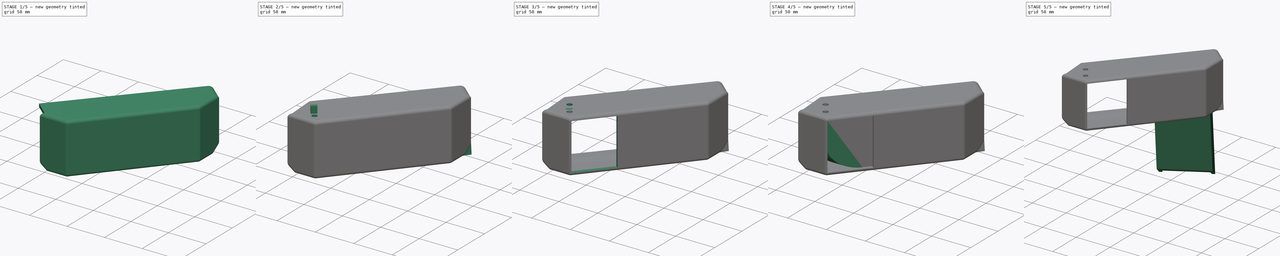
[diagram: build sequence overview — one tinted view per stage of 5, left to right]
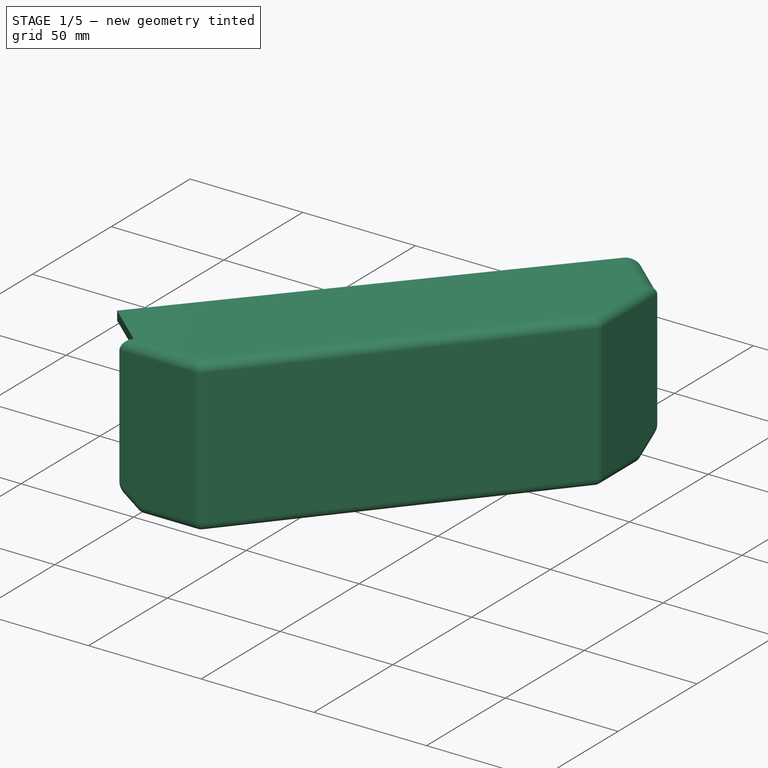
[diagram: stage 1 of 5 — iso view after this stage's code; geometry added in this stage tinted green]
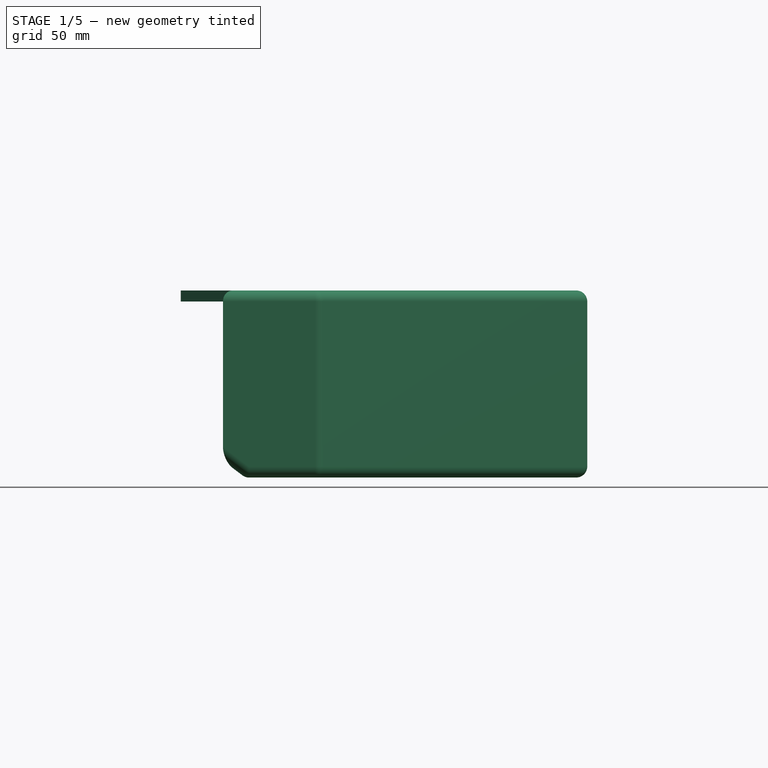
[diagram: stage 1 of 5 — front view after this stage's code; geometry added in this stage tinted green]
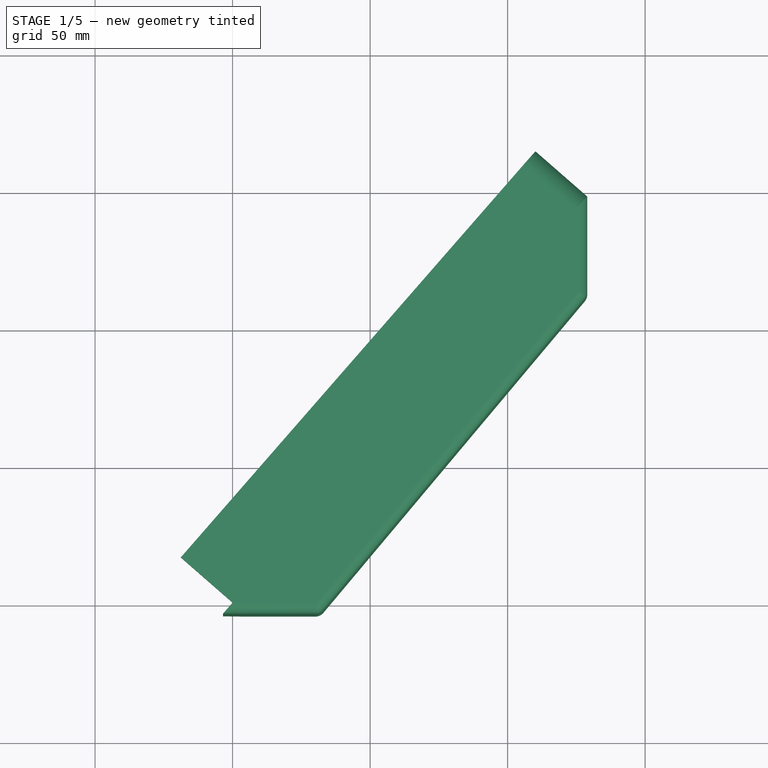
[diagram: stage 1 of 5 — top view after this stage's code; geometry added in this stage tinted green]
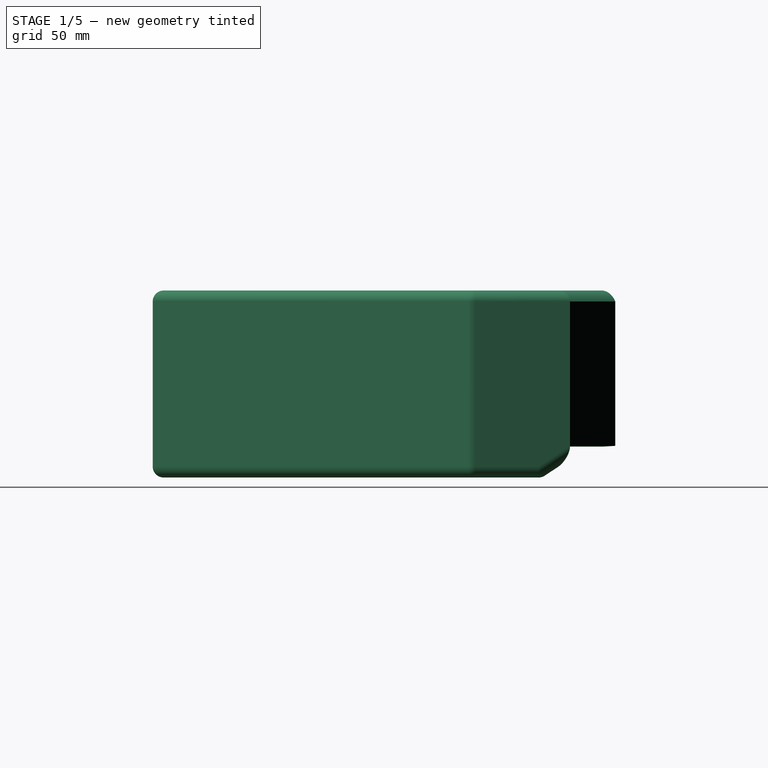
[diagram: stage 1 of 5 — right view after this stage's code; geometry added in this stage tinted green]
FCSTD DOCUMENT  (FreeCAD 0.21R33771 (Git))
Label: slide V.2
License: All rights reserved
LicenseURL: https://en.wikipedia.org/wiki/All_rights_reserved
objects: Sketcher::SketchObject×18, PartDesign::Pad×11, PartDesign::Pocket×7, PartDesign::Chamfer×5, PartDesign::Fillet×4, PartDesign::ShapeBinder×3, PartDesign::Body×2, PartDesign::Thickness×1, Part::MultiFuse×1
note: 80 computed .brp shape members not serialized (recipe doc carries the construction recipe); baked Part::Feature solids carry a one-line shape summary decoded from their .brp

FEATURE [Sketcher::SketchObject] Sketch
  FullyConstrained = true
  sketch-geometry (4):
    g0: LineSegment StartX=0 StartY=0 StartZ=0 EndX=124.939 EndY=143.144 EndZ=0
    g1: LineSegment StartX=124.939 StartY=143.144 StartZ=0 EndX=124.939 EndY=113.144 EndZ=0
    g2: LineSegment StartX=6.062e-13 StartY=0 StartZ=0 EndX=30 EndY=0 EndZ=0
    g3: LineSegment StartX=30 StartY=0 StartZ=0 EndX=124.939 EndY=113.144 EndZ=0
  constraints (12):
    c: Coincident(g0,g-1)
    c: Distance(g0) = 190
    c: Coincident(g1,g0)
    c: Vertical(g1)
    c: PointOnObject(g2,g0)
    c: PointOnObject(g2,g-1)
    c: Horizontal(g2)
    c: Distance(g1) = 30
    c: Distance(g2) = 30
    c: Coincident(g3,g2)
    c: Coincident(g3,g1)
    c: Angle(g3,g2) = 2.26893
FEATURE [PartDesign::Pad] Pad
  Direction = (0,0,1)
  Length = 60
  Length2 = 10
  Profile = -> Sketch
  ReferenceAxis = -> Sketch [N_Axis]
  Type = 0
FEATURE [PartDesign::Chamfer] Chamfer
  Angle = 45
  Base = -> Pad [Edge3]
  BaseFeature = -> Pad
  ChamferType = 0
  FlipDirection = false
  Size = 4.5
  Size2 = 1
  SupportTransform = false
  UseAllEdges = false
FEATURE [PartDesign::ShapeBinder] CopyPad002
  TraceSupport = false
FEATURE [PartDesign::ShapeBinder] CopyPad003
  TraceSupport = false
FEATURE [PartDesign::Thickness] Thickness
  Base = -> Chamfer [Face1]
  BaseFeature = -> Chamfer
  Intersection = false
  Join = 0
  Mode = 0
  SupportTransform = false
  Value = 4
FEATURE [PartDesign::Pad] Pad007
  BaseFeature = -> Thickness
  Direction = (-0.75339,0.657574,0)
  Length = 25
  Length2 = 10
  Profile = -> Sketch010
  ReferenceAxis = -> Sketch010 [N_Axis]
  Type = 0
FEATURE [PartDesign::Fillet] Fillet001
  Base = -> Pad007
  BaseFeature = -> Pad007
  Radius = 4
  SupportTransform = false
  UseAllEdges = false
FEATURE [Sketcher::SketchObject] Sketch012
  ExternalGeometry = -> [Fillet001]
  FullyConstrained = true
  MapMode = 5
  Placement = pos=(0,0,0) rot=(0,0.707107,0.707107;3.14159rad)
  Support = -> [Fillet001]
  sketch-geometry (4):
    g0: LineSegment StartX=-3.029e-13 StartY=60 StartZ=0 EndX=0 EndY=4.5 EndZ=0
    g1: LineSegment StartX=0 StartY=4.5 StartZ=0 EndX=-5.96 EndY=0.02 EndZ=0
    g2: LineSegment StartX=-5.96 StartY=0.02 StartZ=0 EndX=-5.96 EndY=60 EndZ=0
    g3: LineSegment StartX=-5.96 StartY=60 StartZ=0 EndX=-3.029e-13 EndY=60 EndZ=0
  constraints (16):
    c: Coincident(g0,g-4)
    c: Coincident(g0,g-6)
    c: PointOnObject(g1,g-2)
    c: Coincident(g2,g1)
    c: PointOnObject(g2,g-8)
    c: Vertical(g2)
    c: PointOnObject(g3,g2)
    c: Coincident(g3,g0)
    c: Horizontal(g3)
    c: Distance(g2) = 59.98
    c: Distance(g3) = 5.96
    c: Distance(g-6) = 7.47842
    c: Block(g0)
    c: Block(g2)
    c: Block(g3)
    c: Coincident(g0,g1)
FEATURE [PartDesign::Pad] Pad008
  BaseFeature = -> Fillet001
  Direction = (0,1,-2e-16)
  Length = 24
  Length2 = 10
  Profile = -> Sketch012
  ReferenceAxis = -> Sketch012 [N_Axis]
  Type = 0
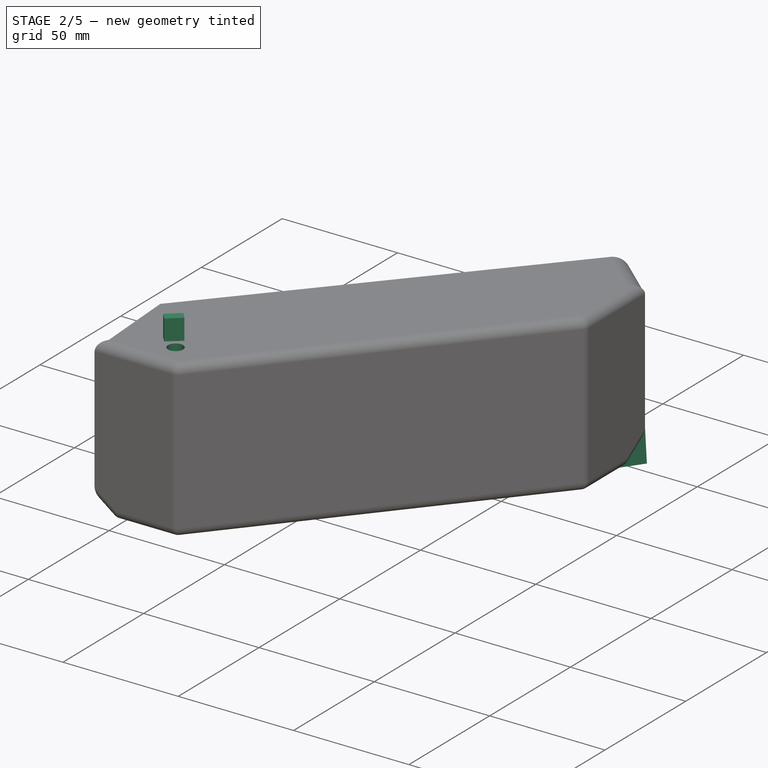
[diagram: stage 2 of 5 — iso view after this stage's code; geometry added in this stage tinted green]
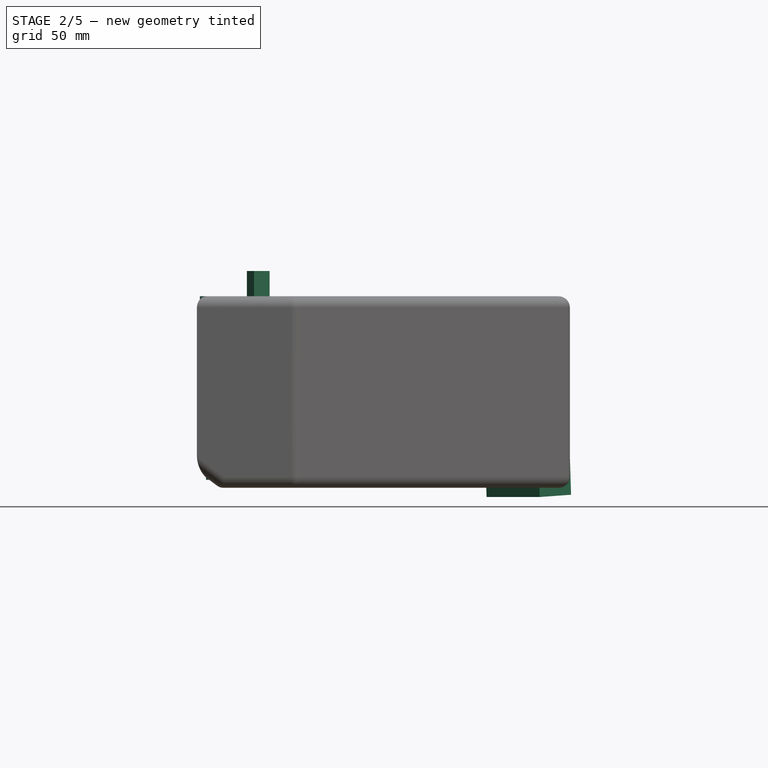
[diagram: stage 2 of 5 — front view after this stage's code; geometry added in this stage tinted green]
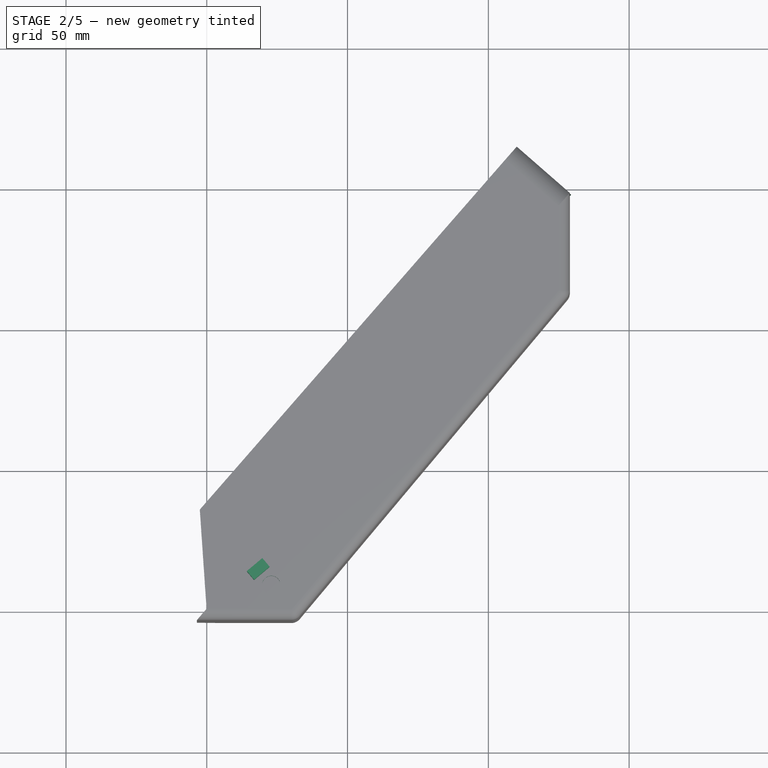
[diagram: stage 2 of 5 — top view after this stage's code; geometry added in this stage tinted green]
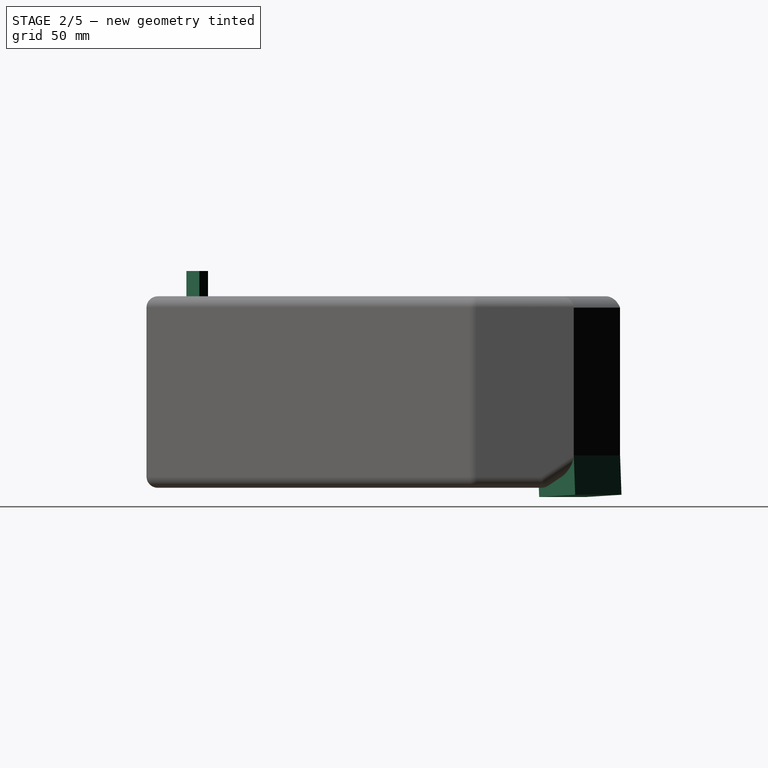
[diagram: stage 2 of 5 — right view after this stage's code; geometry added in this stage tinted green]
FEATURE [PartDesign::Body] Body001
  Group = -> [Sketch001,Pad001,Fillet,Sketch002,Pocket,Sketch003,Pocket001,CopyPad,Sketch004,Pad002,Sketch006,Pad004,Sketch007,Pad005,Sketch008,Pad006,Sketch011,Pocket002,Chamfer002]
  Origin = -> Origin001
  Placement = pos=(65.1292,101.384,39.7679) rot=(-0.5,0.866025,0;1.5708rad)
  Tip = -> Chamfer002
FEATURE [Sketcher::SketchObject] Sketch014
  ExternalGeometry = -> [Pad008]
  FullyConstrained = true
  MapMode = 5
  Placement = pos=(0,0,60) rot=(1,0,0;3.14159rad)
  Support = -> [Pad008]
  sketch-geometry (2):
    g0: LineSegment StartX=30 StartY=0 StartZ=0 EndX=22.9293 EndY=-8.42649 EndZ=0
    g1: Circle CenterX=22.9293 CenterY=-8.42649 CenterZ=0 NormalX=0 NormalY=0 NormalZ=1 AngleXU=0 Radius=3.25
  constraints (5):
    c: Coincident(g0,g-3)
    c: Angle(g-1,g0) = 0.872665
    c: Distance(g0) = 11
    c: Coincident(g1,g0)
    c: Diameter(g1) = 6.5
FEATURE [PartDesign::Pocket] Pocket003
  BaseFeature = -> Pad008
  Direction = (0,0,1)
  Length = 5
  Length2 = 5
  Profile = -> Sketch014
  ReferenceAxis = -> Sketch014 [N_Axis]
  Type = 0
FEATURE [Sketcher::SketchObject] Sketch015
  FullyConstrained = false
  MapMode = 5
  Placement = pos=(0,0,64) rot=(0,0,1;0rad)
  Support = -> [Pocket003]
  sketch-geometry (4):
    g0: LineSegment StartX=14.2258 StartY=13.1984 StartZ=0 EndX=19.7413 EndY=17.8264 EndZ=0
    g1: LineSegment StartX=19.7413 StartY=17.8264 StartZ=0 EndX=22.3125 EndY=14.7623 EndZ=0
    g2: LineSegment StartX=22.3125 StartY=14.7623 StartZ=0 EndX=16.7969 EndY=10.1342 EndZ=0
    g3: LineSegment StartX=16.7969 StartY=10.1342 StartZ=0 EndX=14.2258 EndY=13.1984 EndZ=0
  constraints (4):
    c: Coincident(g0,g1)
    c: Coincident(g1,g2)
    c: Coincident(g2,g3)
    c: Coincident(g3,g0)
FEATURE [PartDesign::Pad] Pad009
  BaseFeature = -> Pocket003
  Direction = (0,0,1)
  Length = 9
  Length2 = 10
  Profile = -> Sketch015
  ReferenceAxis = -> Sketch015 [N_Axis]
  Type = 0
FEATURE [PartDesign::Chamfer] Chamfer003
  Angle = 45
  Base = -> Pad009 [Edge52]
  BaseFeature = -> Pad009
  ChamferType = 0
  FlipDirection = false
  Size = 24.9
  Size2 = 1
  SupportTransform = false
  UseAllEdges = false
FEATURE [Sketcher::SketchObject] Sketch016
  ExternalGeometry = -> [Chamfer003]
  FullyConstrained = true
  MapMode = 5
  Placement = pos=(0,0,0) rot=(-0.305975,0.673194,0.673194;3.73545rad)
  Support = -> [Chamfer003]
  sketch-geometry (4):
    g0: LineSegment StartX=-9.06361 StartY=4.5 StartZ=0 EndX=-9.06361 EndY=-1.16 EndZ=0
    g1: LineSegment StartX=-9.06361 StartY=4.5 StartZ=0 EndX=-117.524 EndY=4.5 EndZ=0
    g2: LineSegment StartX=-9.06361 StartY=-1.16 StartZ=0 EndX=-117.524 EndY=-1.16 EndZ=0
    g3: LineSegment StartX=-117.524 StartY=-1.16 StartZ=0 EndX=-117.524 EndY=4.5 EndZ=0
  constraints (15):
    c: Coincident(g0,g-5)
    c: PointOnObject(g0,g-4)
    c: Parallel(g-5,g0)
    c: Coincident(g1,g0)
    c: PointOnObject(g1,g-3)
    c: Horizontal(g1)
    c: Coincident(g2,g0)
    c: Equal(g1,g2)
    c: Parallel(g1,g2)
    c: Distance(g1) = 108.46
    c: Distance(g2) = 108.46
    c: Coincident(g3,g2)
    c: Coincident(g3,g1)
    c: Vertical(g3)
    c: Perpendicular(g0,g2)
FEATURE [PartDesign::Pad] Pad010
  BaseFeature = -> Chamfer003
  Direction = (-0.75339,0.657574,0)
  Length = 10
  Length2 = 10
  Profile = -> Sketch016
  ReferenceAxis = -> Sketch016 [N_Axis]
  Type = 0
FEATURE [PartDesign::Chamfer] Chamfer004
  Angle = 45
  Base = -> Pad010 [Edge69]
  BaseFeature = -> Pad010
  ChamferType = 0
  FlipDirection = false
  Size = 2
  Size2 = 1
  SupportTransform = false
  UseAllEdges = false
FEATURE [Sketcher::SketchObject] Sketch017
  ExternalGeometry = -> [Chamfer004]
  FullyConstrained = true
  MapMode = 5
  Placement = pos=(0.0606454,0.0694821,-1.91674) rot=(0.999875,-0.000286,0.015804;3.17782rad)
  Support = -> [Chamfer004]
  sketch-geometry (4):
    g0: LineSegment StartX=128.943 StartY=-147.902 StartZ=0 EndX=110.099 EndY=-164.331 EndZ=0
    g1: LineSegment StartX=110.099 StartY=-164.331 StartZ=0 EndX=98.9273 EndY=-151.517 EndZ=0
    g2: LineSegment StartX=128.943 StartY=-147.902 StartZ=0 EndX=117.771 EndY=-135.088 EndZ=0
    g3: LineSegment StartX=117.771 StartY=-135.088 StartZ=0 EndX=98.9273 EndY=-151.517 EndZ=0
  constraints (10):
    c: Coincident(g-3,g0)
    c: Coincident(g0,g-3)
    c: Coincident(g0,g1)
    c: Perpendicular(g1,g0)
    c: Distance(g1) = 17
    c: Coincident(g2,g0)
    c: Parallel(g1,g2)
    c: Equal(g1,g2)
    c: Coincident(g3,g2)
    c: Coincident(g3,g1)
FEATURE [PartDesign::Pad] Pad011
  BaseFeature = -> Chamfer004
  Direction = (0.0316033,0.0362082,-0.998844)
  Length = 14
  Length2 = 10
  Profile = -> Sketch017
  ReferenceAxis = -> Sketch017 [N_Axis]
  Type = 0
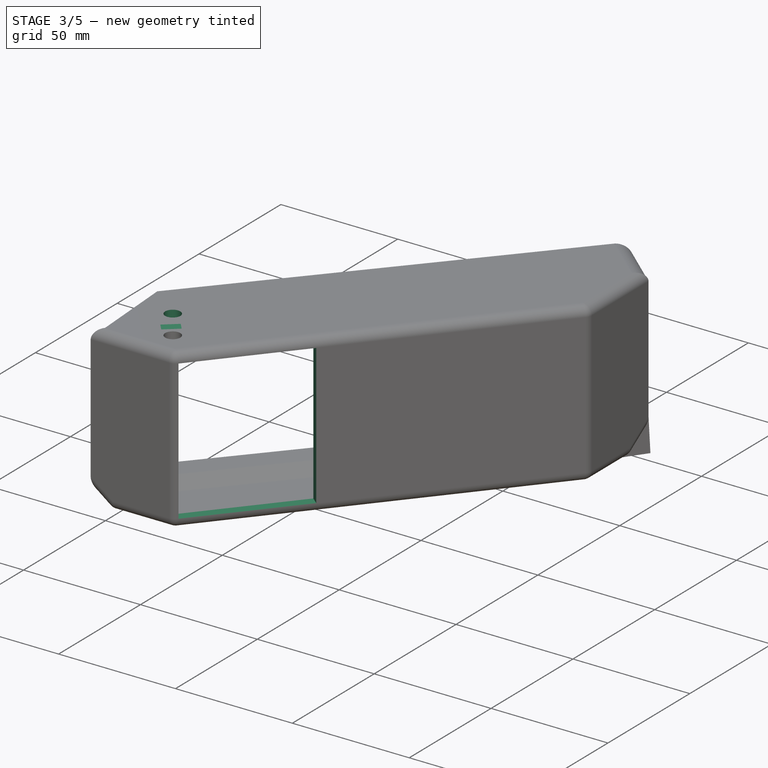
[diagram: stage 3 of 5 — iso view after this stage's code; geometry added in this stage tinted green]
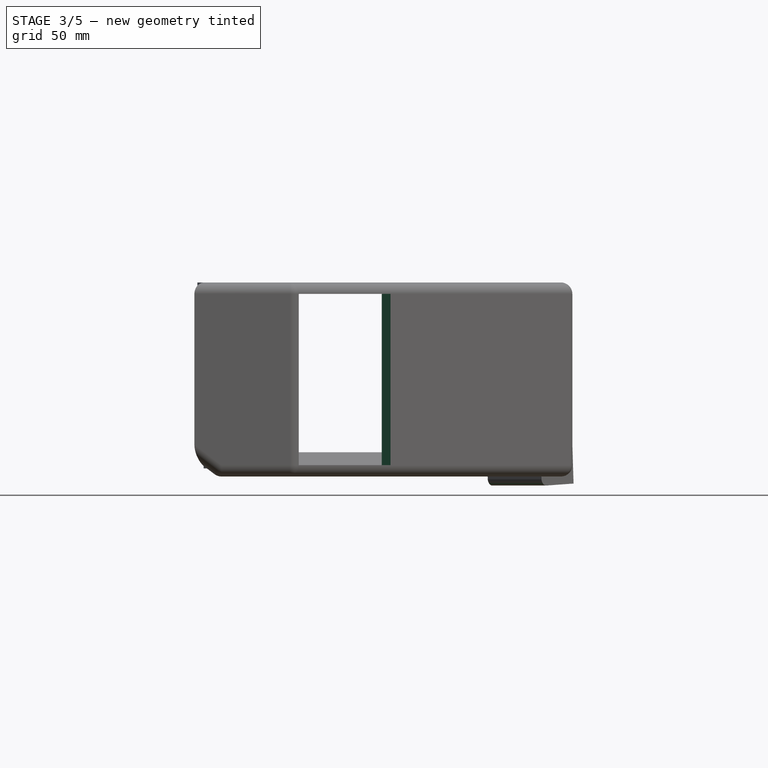
[diagram: stage 3 of 5 — front view after this stage's code; geometry added in this stage tinted green]
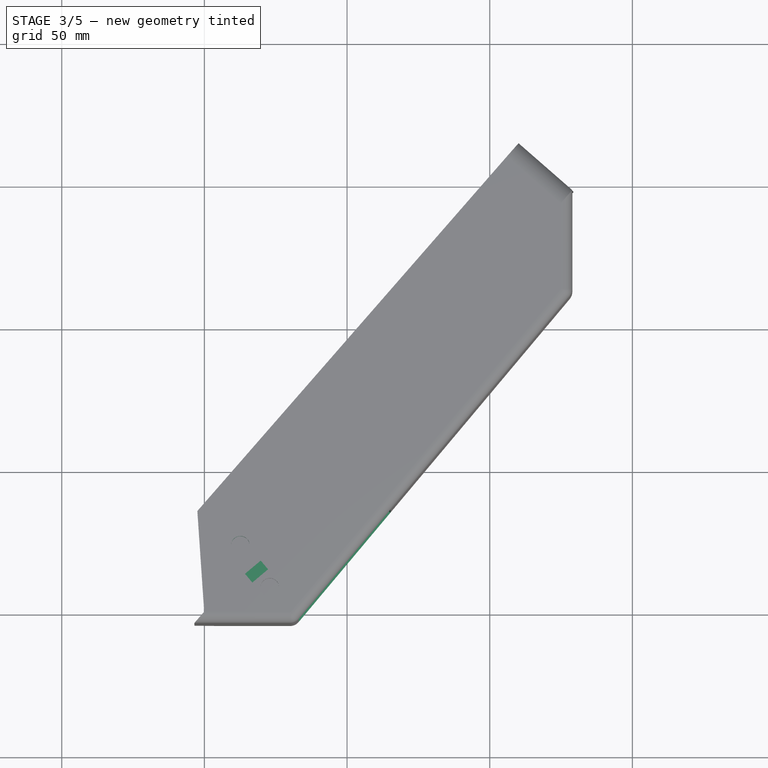
[diagram: stage 3 of 5 — top view after this stage's code; geometry added in this stage tinted green]
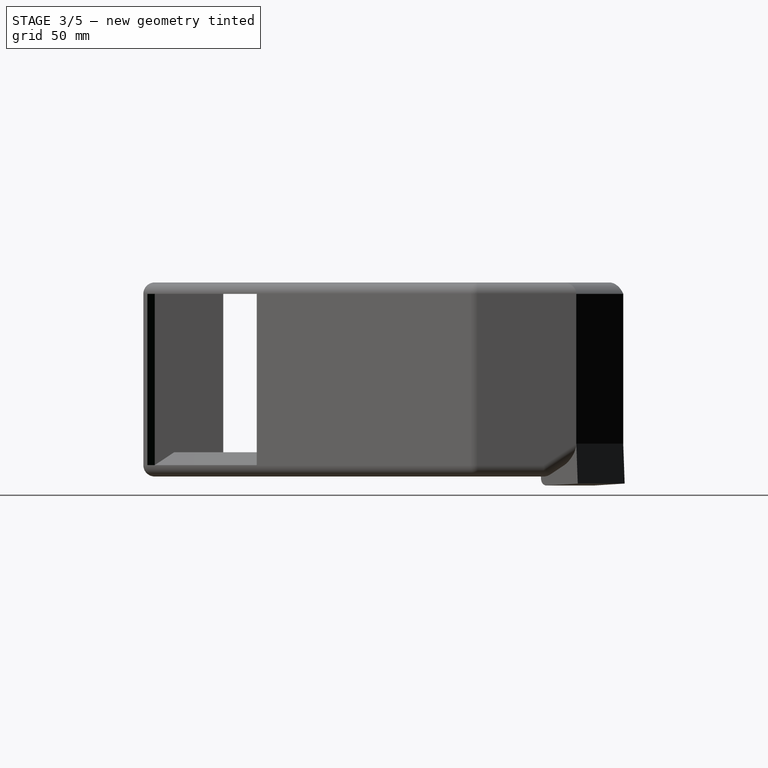
[diagram: stage 3 of 5 — right view after this stage's code; geometry added in this stage tinted green]
FEATURE [PartDesign::Fillet] Fillet002
  Base = -> Pad011 [Edge100]
  BaseFeature = -> Pad011
  Radius = 2
  SupportTransform = false
  UseAllEdges = false
FEATURE [PartDesign::Fillet] Fillet003
  Base = -> Fillet002 [Edge19]
  BaseFeature = -> Fillet002
  Radius = 2.5
  SupportTransform = false
  UseAllEdges = false
FEATURE [Sketcher::SketchObject] Sketch018
  ExternalGeometry = -> [Fillet003]
  FullyConstrained = true
  MapMode = 5
  Placement = pos=(17.6047,-14.7721,0) rot=(-0.313146,0.671543,0.671543;3.74854rad)
  Support = -> [Fillet003]
  sketch-geometry (4):
    g0: LineSegment StartX=-19.2836 StartY=60 StartZ=0 EndX=-19.2836 EndY=0 EndZ=0
    g1: LineSegment StartX=-19.2836 StartY=0 StartZ=0 EndX=-69.2836 EndY=0 EndZ=0
    g2: LineSegment StartX=-19.2836 StartY=60 StartZ=0 EndX=-69.2836 EndY=60 EndZ=0
    g3: LineSegment StartX=-69.2836 StartY=60 StartZ=0 EndX=-69.2836 EndY=0 EndZ=0
  constraints (13):
    c: Coincident(g-4,g0)
    c: Coincident(g0,g-4)
    c: Coincident(g0,g1)
    c: PointOnObject(g1,g-1)
    c: Horizontal(g1)
    c: Coincident(g2,g0)
    c: PointOnObject(g2,g-3)
    c: Horizontal(g2)
    c: Equal(g1,g2)
    c: Distance(g2) = 50
    c: Coincident(g3,g2)
    c: Coincident(g3,g1)
    c: Vertical(g3)
FEATURE [PartDesign::Pocket] Pocket004
  BaseFeature = -> Fillet003
  Direction = (0.766044,-0.642788,0)
  Length = 5
  Length2 = 5
  Profile = -> Sketch018
  ReferenceAxis = -> Sketch018 [N_Axis]
  Type = 0
FEATURE [Sketcher::SketchObject] Sketch019
  ExternalGeometry = -> [Pocket004]
  FullyConstrained = false
  MapMode = 5
  Placement = pos=(-0.621172,0.740284,0) rot=(-0.249244,0.684791,0.684791;3.63013rad)
  Support = -> [Pocket004]
  sketch-geometry (4):
    g0: LineSegment StartX=-26.5813 StartY=73 StartZ=0 EndX=-19.3813 EndY=73 EndZ=0
    g1: LineSegment StartX=-19.3813 StartY=73 StartZ=0 EndX=-19.3813 EndY=64 EndZ=0
    g2: LineSegment StartX=-19.3813 StartY=64 StartZ=0 EndX=-26.5813 EndY=64 EndZ=0
    g3: LineSegment StartX=-26.5813 StartY=64 StartZ=0 EndX=-26.5813 EndY=73 EndZ=0
  constraints (8):
    c: Coincident(g-5,g0)
    c: Coincident(g0,g-4)
    c: Coincident(g0,g1)
    c: Coincident(g1,g-6)
    c: Coincident(g1,g2)
    c: Coincident(g2,g-7)
    c: Coincident(g2,g3)
    c: Coincident(g3,g0)
FEATURE [PartDesign::Pocket] Pocket005
  BaseFeature = -> Pocket004
  Direction = (0.642788,-0.766044,2e-16)
  Length = 5
  Length2 = 5
  Profile = -> Sketch019
  ReferenceAxis = -> Sketch019 [N_Axis]
  Type = 0
FEATURE [Sketcher::SketchObject] Sketch020
  ExternalGeometry = -> [Pocket005]
  FullyConstrained = true
  MapMode = 5
  Placement = pos=(0,0,64) rot=(0,0,1;0rad)
  Support = -> [Pocket005]
  sketch-geometry (2):
    g0: LineSegment StartX=22.9293 StartY=8.42649 StartZ=0 EndX=12.605 EndY=23.1712 EndZ=0
    g1: Circle CenterX=12.605 CenterY=23.1712 CenterZ=0 NormalX=0 NormalY=0 NormalZ=1 AngleXU=0 Radius=3.25
  constraints (6):
    c: Coincident(g0,g-3)
    c: Angle(g0,g-1) = 0.959931
    c: Distance(g0) = 18
    c: Diameter(g-3) = 6.5
    c: Coincident(g1,g0)
    c: Diameter(g1) = 6.5
FEATURE [PartDesign::Pocket] Pocket006
  BaseFeature = -> Pocket005
  Direction = (0,0,-1)
  Length = 5
  Length2 = 5
  Profile = -> Sketch020
  ReferenceAxis = -> Sketch020 [N_Axis]
  Type = 0
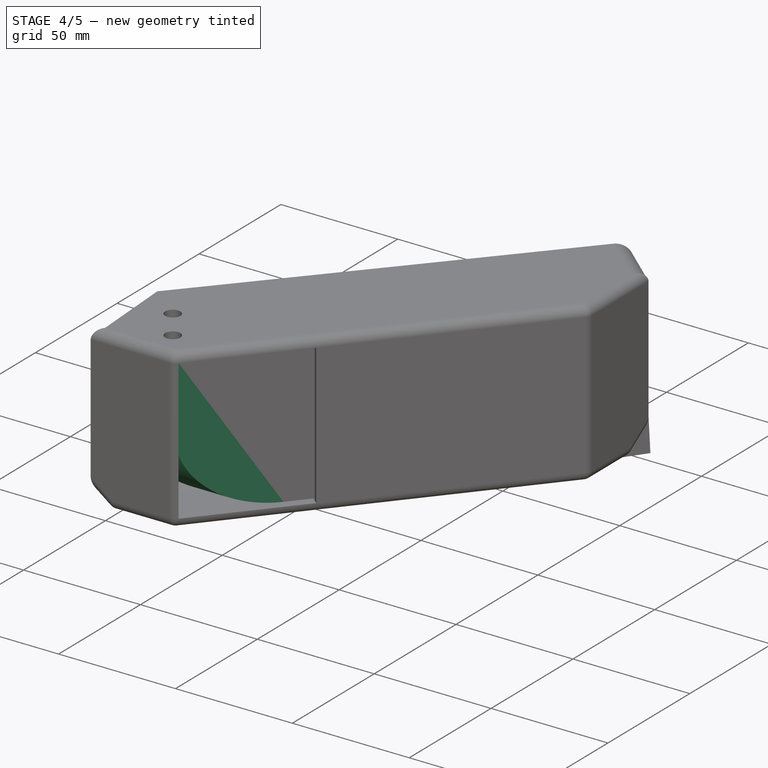
[diagram: stage 4 of 5 — iso view after this stage's code; geometry added in this stage tinted green]
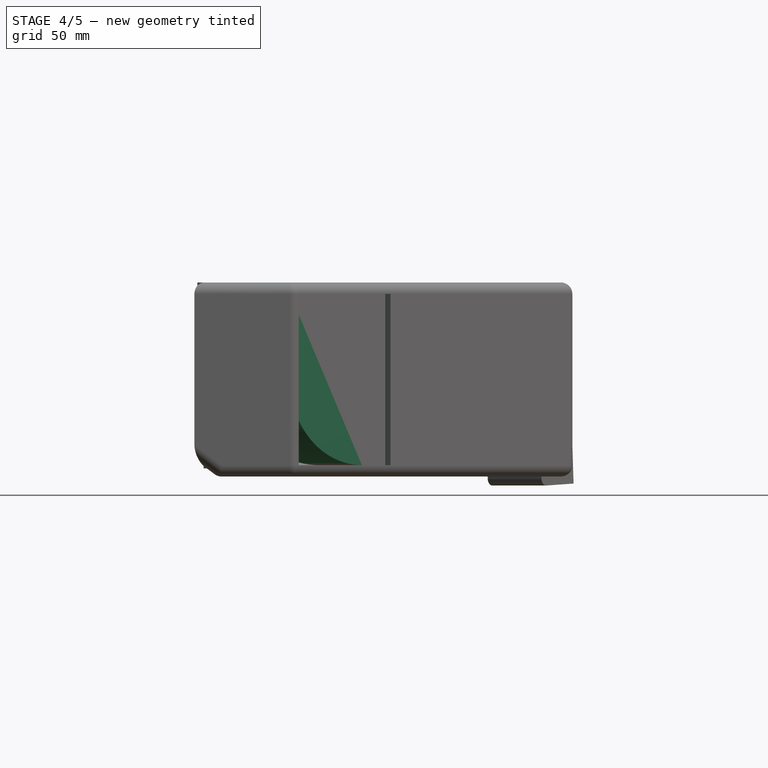
[diagram: stage 4 of 5 — front view after this stage's code; geometry added in this stage tinted green]
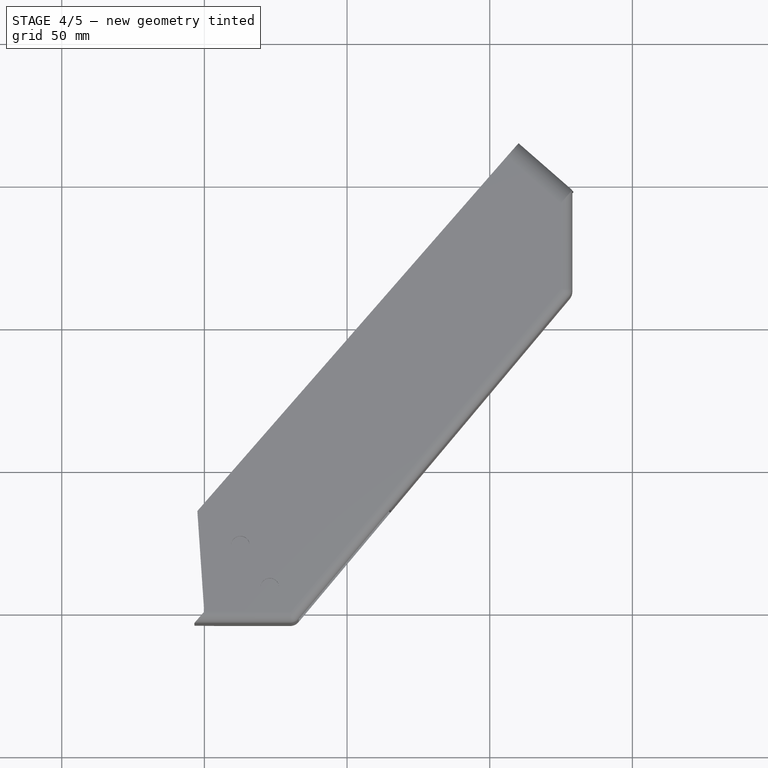
[diagram: stage 4 of 5 — top view after this stage's code; geometry added in this stage tinted green]
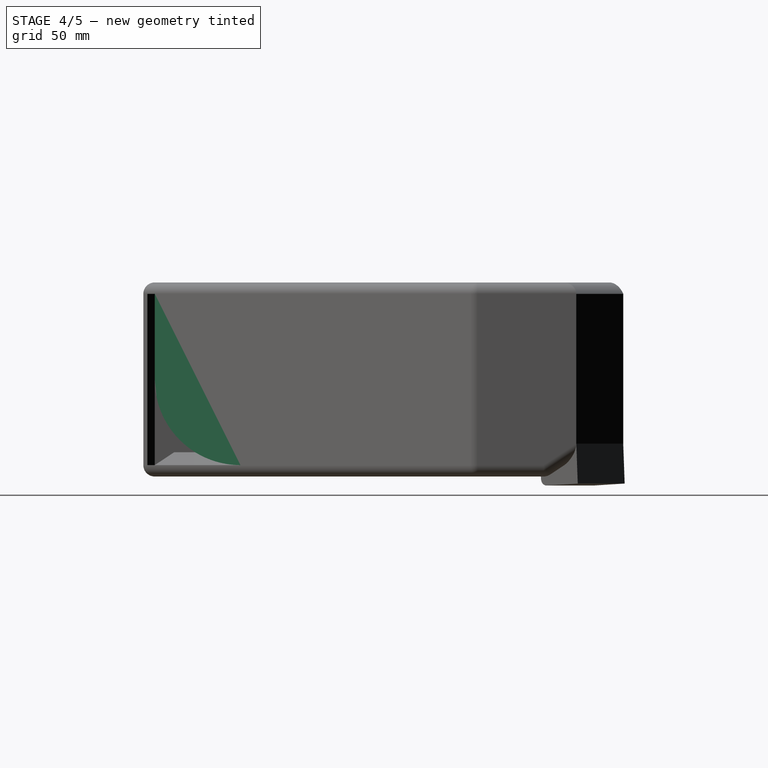
[diagram: stage 4 of 5 — right view after this stage's code; geometry added in this stage tinted green]
FEATURE [Sketcher::SketchObject] Sketch001
  FullyConstrained = true
  sketch-geometry (4):
    g0: LineSegment StartX=0 StartY=0 StartZ=0 EndX=105.651 EndY=120.158 EndZ=0
    g1: LineSegment StartX=105.651 StartY=120.158 StartZ=0 EndX=105.651 EndY=90.1575 EndZ=0
    g2: LineSegment StartX=-1.11719e-11 StartY=0 StartZ=0 EndX=30 EndY=0 EndZ=0
    g3: LineSegment StartX=30 StartY=0 StartZ=0 EndX=105.651 EndY=90.1575 EndZ=0
  constraints (12):
    c: Coincident(g0,g-1)
    c: Distance(g0) = 160
    c: Coincident(g1,g0)
    c: Vertical(g1)
    c: PointOnObject(g2,g0)
    c: PointOnObject(g2,g-1)
    c: Horizontal(g2)
    c: Distance(g1) = 30
    c: Distance(g2) = 30
    c: Coincident(g3,g2)
    c: Coincident(g3,g1)
    c: Angle(g3,g2) = 2.26893
FEATURE [PartDesign::Pad] Pad001
  Direction = (0,0,1)
  Length = 60
  Length2 = 10
  Profile = -> Sketch001
  ReferenceAxis = -> Sketch001 [N_Axis]
  Type = 0
FEATURE [PartDesign::Fillet] Fillet
  Base = -> Pad001 [Edge11]
  BaseFeature = -> Pad001
  Radius = 30
  SupportTransform = false
  UseAllEdges = false
FEATURE [Sketcher::SketchObject] Sketch002
  ExternalGeometry = -> [Fillet]
  FullyConstrained = true
  MapMode = 5
  Placement = pos=(0,0,0) rot=(-0.304632,0.673498,0.673498;3.73299rad)
  Support = -> [Fillet]
  sketch-geometry (3):
    g0: LineSegment StartX=-60.7761 StartY=60 StartZ=0 EndX=-1.77612 EndY=21.154 EndZ=0
    g1: LineSegment StartX=-60.7761 StartY=60 StartZ=0 EndX=-57.3736 EndY=-0.314102 EndZ=0
    g2: ArcOfCircle CenterX=-37.7038 CenterY=31.4721 CenterZ=0 NormalX=0 NormalY=0 NormalZ=1 AngleXU=0 Radius=37.38 StartAngle=4.15825 EndAngle=6.00352
  constraints (12):
    c: PointOnObject(g0,g-3)
    c: PointOnObject(g0,g-4)
    c: Coincident(g1,g0)
    c: PointOnObject(g0,g-3)
    c: Coincident(g2,g0)
    c: Distance(g0) = 70.64
    c: Distance(g1) = 60.41
    c: Radius(g2) = 37.38
    c: Angle(g1,g0) = 0.93218
    c: DistanceX(g0,g0) = 59
    c: PointOnObject(g1,g2)
    c: PointOnObject(g2,g1)
FEATURE [PartDesign::Pocket] Pocket
  BaseFeature = -> Fillet
  Direction = (0.750985,-0.66032,2e-16)
  Length = 10
  Length2 = 5
  Profile = -> Sketch002
  ReferenceAxis = -> Sketch002 [N_Axis]
  Type = 0
FEATURE [Sketcher::SketchObject] Sketch003
  ExternalGeometry = -> [Pocket]
  FullyConstrained = true
  MapMode = 5
  Placement = pos=(0,0,0) rot=(1,0,0;3.14159rad)
  Support = -> [Pocket]
  sketch-geometry (3):
    g0: LineSegment StartX=37.8966 StartY=-43.1 StartZ=0 EndX=45.4065 EndY=-36.4968 EndZ=0
    g1: LineSegment StartX=45.4065 StartY=-36.4968 StartZ=0 EndX=45.4065 EndY=-51.641 EndZ=0
    g2: LineSegment StartX=37.8966 StartY=-43.1 StartZ=0 EndX=45.4065 EndY=-51.641 EndZ=0
  constraints (7):
    c: Coincident(g0,g-4)
    c: Coincident(g0,g-3)
    c: Coincident(g1,g0)
    c: PointOnObject(g1,g-4)
    c: Vertical(g1)
    c: Coincident(g2,g0)
    c: Coincident(g2,g1)
FEATURE [PartDesign::Pocket] Pocket001
  BaseFeature = -> Pocket
  Direction = (0,0,1)
  Length = 60
  Length2 = 5
  Profile = -> Sketch003
  ReferenceAxis = -> Sketch003 [N_Axis]
  Type = 0
FEATURE [PartDesign::ShapeBinder] CopyPad
  TraceSupport = false
FEATURE [Sketcher::SketchObject] Sketch004
  ExternalGeometry = -> [Pocket001]
  FullyConstrained = true
  MapMode = 5
  Placement = pos=(37.8966,43.1,0) rot=(0.257656,0.683233,0.683233;2.63725rad)
  Support = -> [Pocket001]
  sketch-geometry (4):
    g0: LineSegment StartX=0 StartY=60.0074 StartZ=0 EndX=-10 EndY=60.0074 EndZ=0
    g1: LineSegment StartX=-10 StartY=60.0074 StartZ=0 EndX=-10 EndY=57.7784 EndZ=0
    g2: LineSegment StartX=-10 StartY=57.7784 StartZ=0 EndX=0 EndY=57.7784 EndZ=0
    g3: LineSegment StartX=0 StartY=57.7784 StartZ=0 EndX=0 EndY=60.0074 EndZ=0
  constraints (12):
    c: Coincident(g0,g1)
    c: Coincident(g1,g2)
    c: Coincident(g2,g3)
    c: Coincident(g3,g0)
    c: Horizontal(g0)
    c: Horizontal(g2)
    c: Vertical(g1)
    c: Vertical(g3)
    c: PointOnObject(g0,g-2)
    c: PointOnObject(g1,g-6)
    c: Block(g0)
    c: Block(g3)
FEATURE [PartDesign::Pad] Pad002
  BaseFeature = -> Pocket001
  Direction = (0.66032,0.750985,-1e-16)
  Length = 12
  Length2 = 10
  Profile = -> Sketch004
  ReferenceAxis = -> Sketch004 [N_Axis]
  Type = 0
FEATURE [PartDesign::Chamfer] Chamfer005
  Angle = 45
  Base = -> Pocket006 [Edge106]
  BaseFeature = -> Pocket006
  ChamferType = 0
  FlipDirection = false
  Size = 2
  Size2 = 1
  SupportTransform = false
  UseAllEdges = false
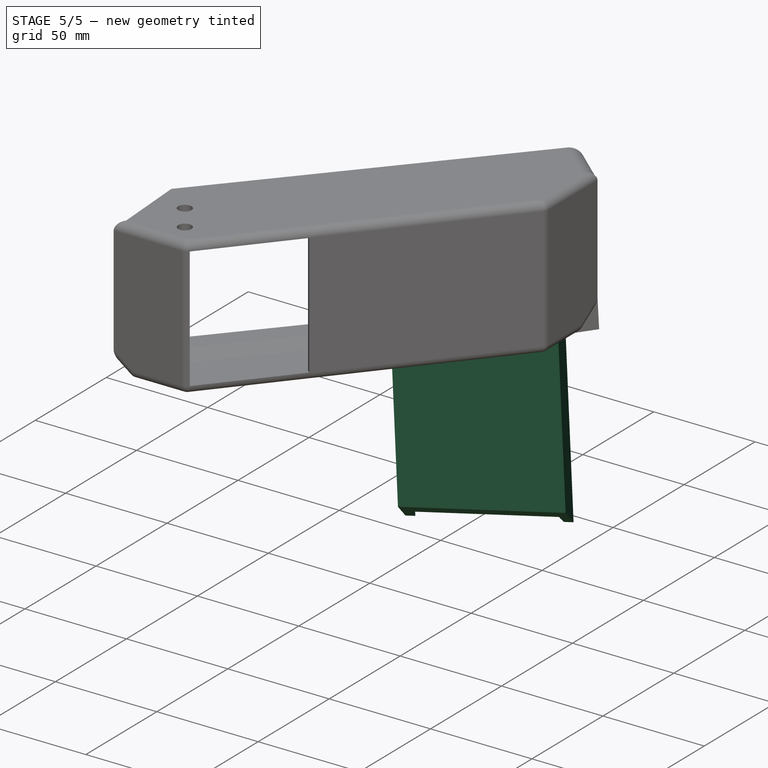
[diagram: stage 5 of 5 — iso view after this stage's code; geometry added in this stage tinted green]
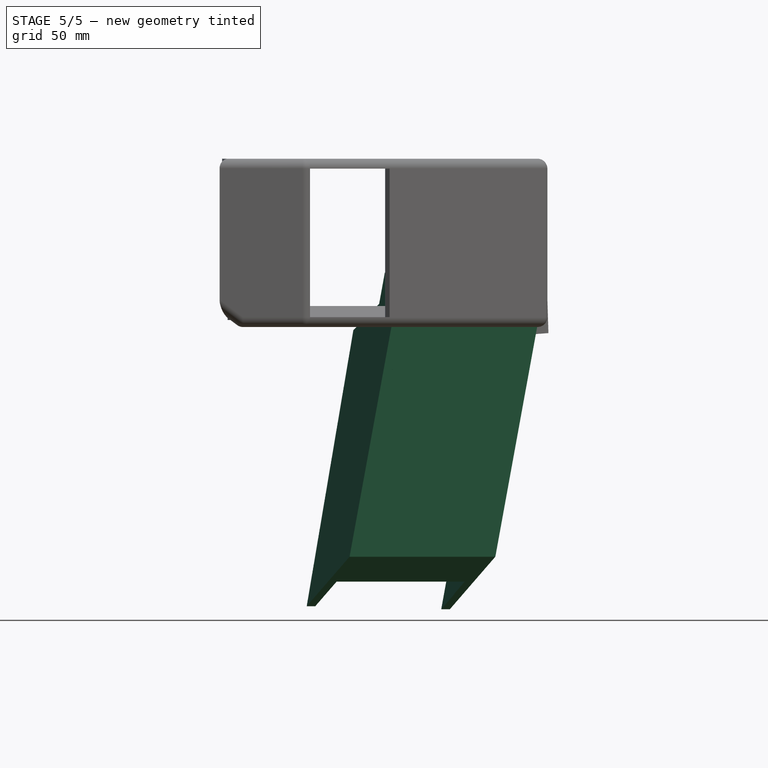
[diagram: stage 5 of 5 — front view after this stage's code; geometry added in this stage tinted green]
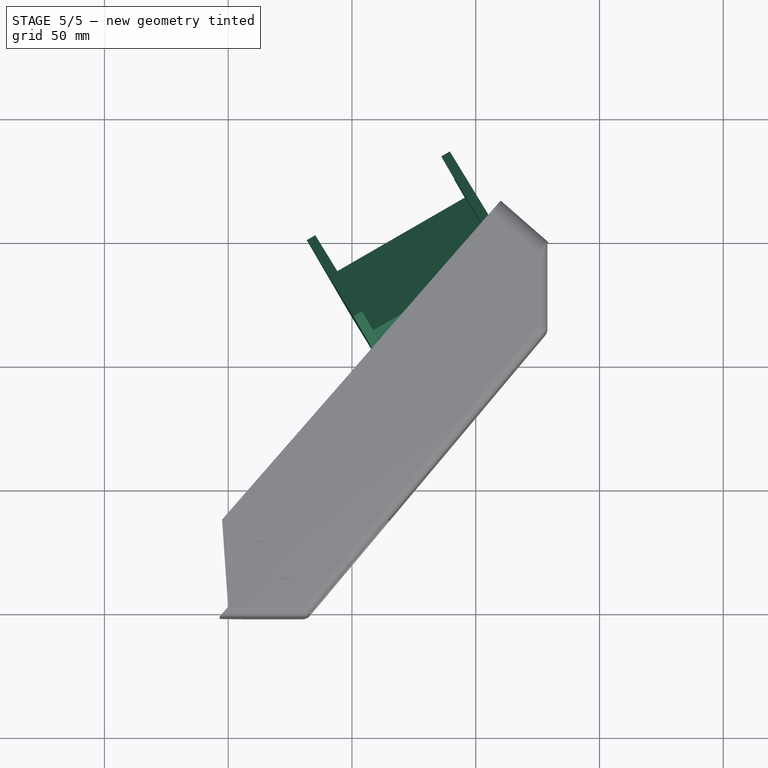
[diagram: stage 5 of 5 — top view after this stage's code; geometry added in this stage tinted green]
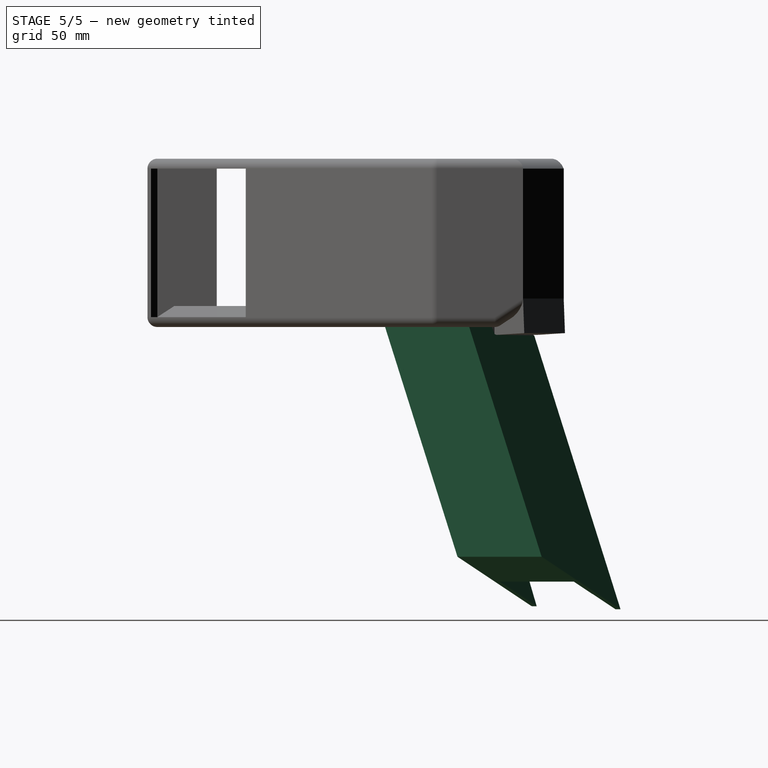
[diagram: stage 5 of 5 — right view after this stage's code; geometry added in this stage tinted green]
FEATURE [Sketcher::SketchObject] Sketch006
  ExternalGeometry = -> [Pad002]
  FullyConstrained = true
  MapMode = 5
  Placement = pos=(0,0,0) rot=(1,0,0;3.14159rad)
  Support = -> [Pad002]
  sketch-geometry (4):
    g0: LineSegment StartX=105.651 StartY=-90.1575 StartZ=0 EndX=105.651 EndY=-130.158 EndZ=0
    g1: LineSegment StartX=105.651 StartY=-130.158 StartZ=0 EndX=27.9366 EndY=-41.7724 EndZ=0
    g2: LineSegment StartX=27.9366 StartY=-41.7724 StartZ=0 EndX=30 EndY=1.23e-14 EndZ=0
    g3: LineSegment StartX=30 StartY=1.23e-14 StartZ=0 EndX=105.651 EndY=-90.1575 EndZ=0
  constraints (10):
    c: Coincident(g0,g-5)
    c: Vertical(g0)
    c: Coincident(g1,g0)
    c: Parallel(g-4,g1)
    c: Coincident(g2,g1)
    c: Coincident(g2,g-8)
    c: Coincident(g3,g2)
    c: Coincident(g3,g0)
    c: Equal(g3,g1)
    c: Distance(g0) = 40
FEATURE [PartDesign::Pad] Pad004
  BaseFeature = -> Pad002
  Direction = (0,0,-1)
  Length = 4
  Length2 = 10
  Profile = -> Sketch006
  ReferenceAxis = -> Sketch006 [N_Axis]
  Type = 0
FEATURE [Sketcher::SketchObject] Sketch007
  ExternalGeometry = -> [Pad004]
  FullyConstrained = true
  MapMode = 5
  Placement = pos=(17.6047,-14.7721,0) rot=(0.834817,0.389282,0.389282;1.75037rad)
  Support = -> [Pad004]
  sketch-geometry (4):
    g0: LineSegment StartX=19.2836 StartY=60 StartZ=0 EndX=56.2836 EndY=60 EndZ=0
    g1: LineSegment StartX=56.2836 StartY=60 StartZ=0 EndX=56.2836 EndY=-4 EndZ=0
    g2: LineSegment StartX=56.2836 StartY=-4 StartZ=0 EndX=19.2836 EndY=-4 EndZ=0
    g3: LineSegment StartX=19.2836 StartY=-4 StartZ=0 EndX=19.2836 EndY=60 EndZ=0
  constraints (11):
    c: Coincident(g0,g1)
    c: Coincident(g1,g2)
    c: Coincident(g2,g3)
    c: Coincident(g3,g0)
    c: Horizontal(g0)
    c: Horizontal(g2)
    c: Vertical(g1)
    c: Vertical(g3)
    c: Coincident(g0,g-6)
    c: PointOnObject(g1,g-3)
    c: Distance(g2) = 37
FEATURE [PartDesign::Pad] Pad005
  BaseFeature = -> Pad004
  Direction = (0.766044,-0.642788,0)
  Length = 12.5
  Length2 = 10
  Profile = -> Sketch007
  ReferenceAxis = -> Sketch007 [N_Axis]
  Reversed = true
  Type = 0
FEATURE [Sketcher::SketchObject] Sketch008
  ExternalGeometry = -> [Pad005]
  FullyConstrained = true
  MapMode = 5
  Placement = pos=(0,0,60) rot=(0,0,1;0rad)
  Support = -> [Pad005]
  sketch-geometry (4):
    g0: LineSegment StartX=105.651 StartY=90.1575 StartZ=0 EndX=105.651 EndY=132.658 EndZ=0
    g1: LineSegment StartX=105.651 StartY=90.1575 StartZ=0 EndX=30 EndY=5.7e-15 EndZ=0
    g2: LineSegment StartX=30 StartY=5.7e-15 StartZ=0 EndX=30 EndY=42.5 EndZ=0
    g3: LineSegment StartX=30 StartY=42.5 StartZ=0 EndX=105.651 EndY=132.658 EndZ=0
  constraints (10):
    c: Coincident(g0,g-5)
    c: Vertical(g0)
    c: Coincident(g1,g0)
    c: Coincident(g1,g-6)
    c: Coincident(g2,g1)
    c: Parallel(g0,g2)
    c: Equal(g0,g2)
    c: Coincident(g3,g2)
    c: Coincident(g3,g0)
    c: Distance(g0) = 42.5
FEATURE [PartDesign::Pad] Pad006
  BaseFeature = -> Pad005
  Direction = (0,0,1)
  Length = 4
  Length2 = 10
  Profile = -> Sketch008
  ReferenceAxis = -> Sketch008 [N_Axis]
  Type = 0
FEATURE [Sketcher::SketchObject] Sketch010
  ExternalGeometry = -> [Thickness]
  FullyConstrained = true
  MapMode = 5
  Placement = pos=(0,0,0) rot=(-0.305975,0.673194,0.673194;3.73545rad)
  Support = -> [Thickness]
  sketch-geometry (9):
    g0: LineSegment StartX=-196.083 StartY=7.51356 StartZ=0 EndX=-196.083 EndY=60 EndZ=0
    g1: ArcOfCircle CenterX=-189.32 CenterY=56.3401 CenterZ=0 NormalX=0 NormalY=0 NormalZ=1 AngleXU=0 Radius=7.69 StartAngle=1.65938 EndAngle=2.64558
    g2: LineSegment StartX=-190 StartY=64 StartZ=0 EndX=-80.53 EndY=64 EndZ=0
    g3: LineSegment StartX=-80.53 StartY=60 StartZ=0 EndX=-190 EndY=60 EndZ=0
    g4: LineSegment StartX=-196.083 StartY=7.51356 StartZ=0 EndX=-190 EndY=7.22087 EndZ=0
    g5: LineSegment StartX=-190 StartY=7.22087 StartZ=0 EndX=-190 EndY=60 EndZ=0
    g6: LineSegment StartX=-80.53 StartY=64 StartZ=0 EndX=0 EndY=64 EndZ=0
    g7: LineSegment StartX=-80.53 StartY=60 StartZ=0 EndX=0 EndY=60 EndZ=0
    g8: LineSegment StartX=0 StartY=64 StartZ=0 EndX=0 EndY=60 EndZ=0
  constraints (31):
    c: Coincident(g0,g-5)
    c: Coincident(g0,g-5)
    c: Tangent(g-4,g-4)
    c: Coincident(g1,g0)
    c: Coincident(g1,g-3)
    c: Radius(g1) = 7.69
    c: Coincident(g2,g1)
    c: PointOnObject(g2,g-3)
    c: Horizontal(g2)
    c: Tangent(g-4,g-4)
    c: Distance(g2) = 109.47
    c: PointOnObject(g3,g-7)
    c: Coincident(g3,g-7)
    c: Horizontal(g3)
    c: Coincident(g4,g0)
    c: PointOnObject(g4,g-6)
    c: Distance(g4) = 6.09
    c: Coincident(g5,g4)
    c: Coincident(g5,g3)
    c: Vertical(g5)
    c: Coincident(g6,g2)
    c: Coincident(g6,g-3)
    c: Horizontal(g6)
    c: Tangent(g-4,g-4)
    c: Coincident(g7,g3)
    c: PointOnObject(g7,g-2)
    c: Horizontal(g7)
    c: Coincident(g8,g6)
    c: Coincident(g8,g7)
    c: Vertical(g8)
    c: Distance(g7) = 80.53
FEATURE [Sketcher::SketchObject] Sketch011
  ExternalGeometry = -> [Pad006]
  FullyConstrained = true
  MapMode = 5
  Placement = pos=(0,0,0) rot=(-0.304632,0.673498,0.673498;3.73299rad)
  Support = -> [Pad006]
  sketch-geometry (4):
    g0: LineSegment StartX=-160 StartY=59.8 StartZ=0 EndX=-56.5108 EndY=59.8 EndZ=0
    g1: LineSegment StartX=-56.5108 StartY=59.8 StartZ=0 EndX=-56.5108 EndY=0 EndZ=0
    g2: LineSegment StartX=-56.5108 StartY=0 StartZ=0 EndX=-160 EndY=0 EndZ=0
    g3: LineSegment StartX=-160 StartY=0 StartZ=0 EndX=-160 EndY=59.8 EndZ=0
  constraints (12):
    c: Coincident(g0,g1)
    c: Coincident(g1,g2)
    c: Coincident(g2,g3)
    c: Coincident(g3,g0)
    c: Horizontal(g0)
    c: Horizontal(g2)
    c: Vertical(g1)
    c: Vertical(g3)
    c: PointOnObject(g0,g-5)
    c: PointOnObject(g1,g-6)
    c: Distance(g1) = 59.8
    c: Block(g0)
FEATURE [PartDesign::Pocket] Pocket002
  BaseFeature = -> Pad006
  Direction = (0.750985,-0.66032,2e-16)
  Length = 6.5
  Length2 = 5
  Profile = -> Sketch011
  ReferenceAxis = -> Sketch011 [N_Axis]
  Type = 0
FEATURE [PartDesign::Chamfer] Chamfer002
  Angle = 45
  Base = -> Pocket002 [Edge20]
  BaseFeature = -> Pocket002
  ChamferType = 0
  FlipDirection = false
  Size = 2.5
  Size2 = 1
  SupportTransform = false
  UseAllEdges = false
FEATURE [PartDesign::Body] Body
  Group = -> [Sketch,Pad,Chamfer,CopyPad002,CopyPad003,Thickness,Sketch010,Pad007,Fillet001,Sketch012,Pad008,Sketch014,Pocket003,Sketch015,Pad009,Chamfer003,Sketch016,Pad010,Chamfer004,Sketch017,Pad011,Fillet002,Fillet003,Sketch018,Pocket004,Sketch019,Pocket005,Sketch020,Pocket006,Chamfer005]
  Origin = -> Origin
  Tip = -> Chamfer005
FEATURE [Part::MultiFuse] Fusion
  Shapes = -> [Body,Body001]
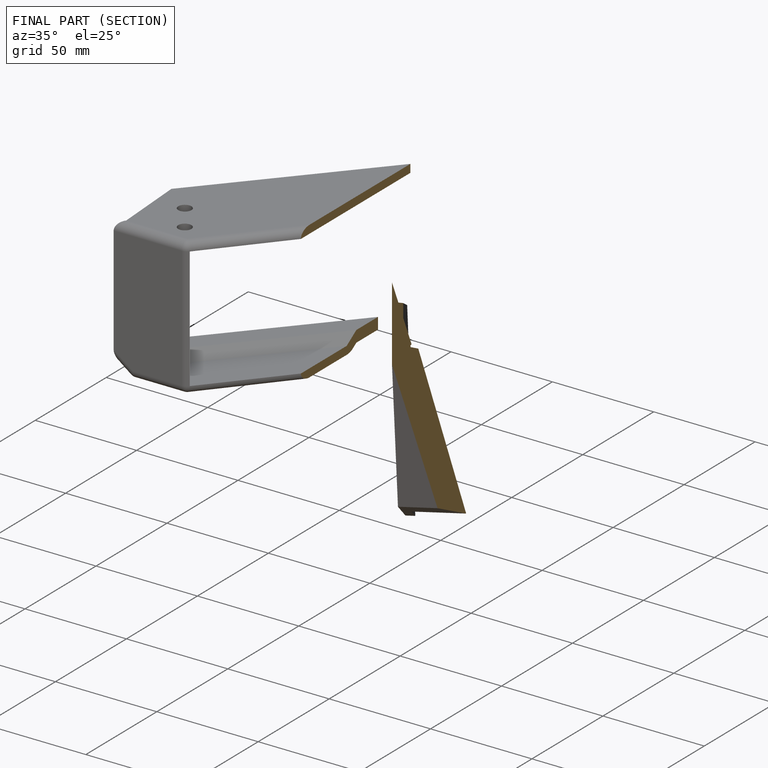
[diagram: finished part — half-section view (interior)]
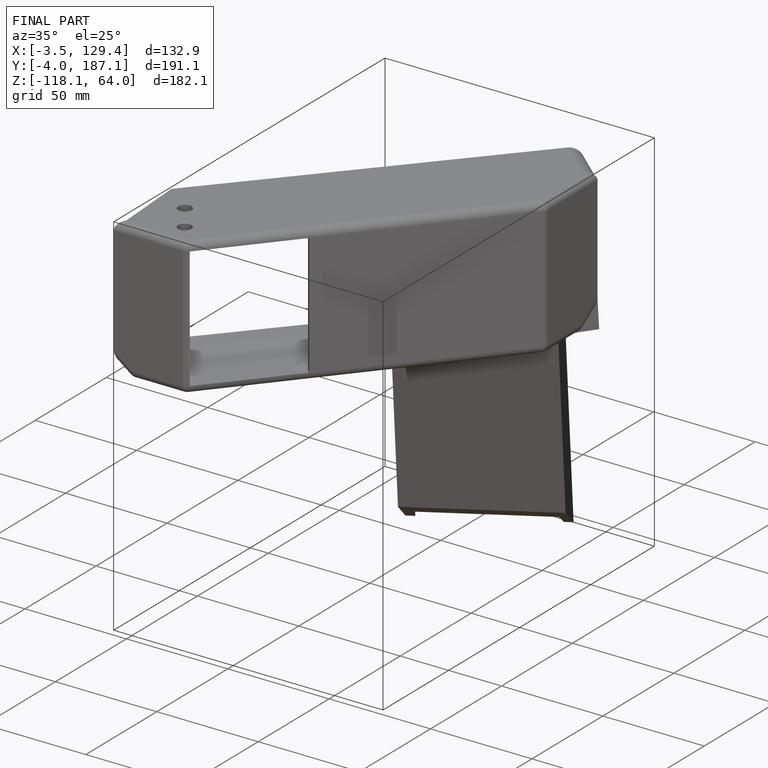
[diagram: finished part — iso view with bounding-box wireframe]
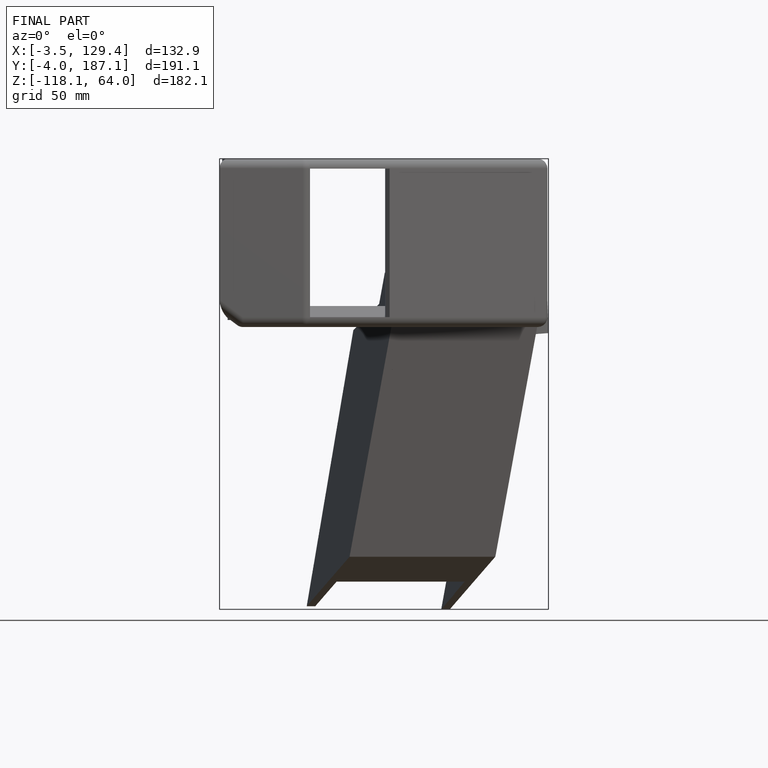
[diagram: finished part — front view with bounding-box wireframe]
